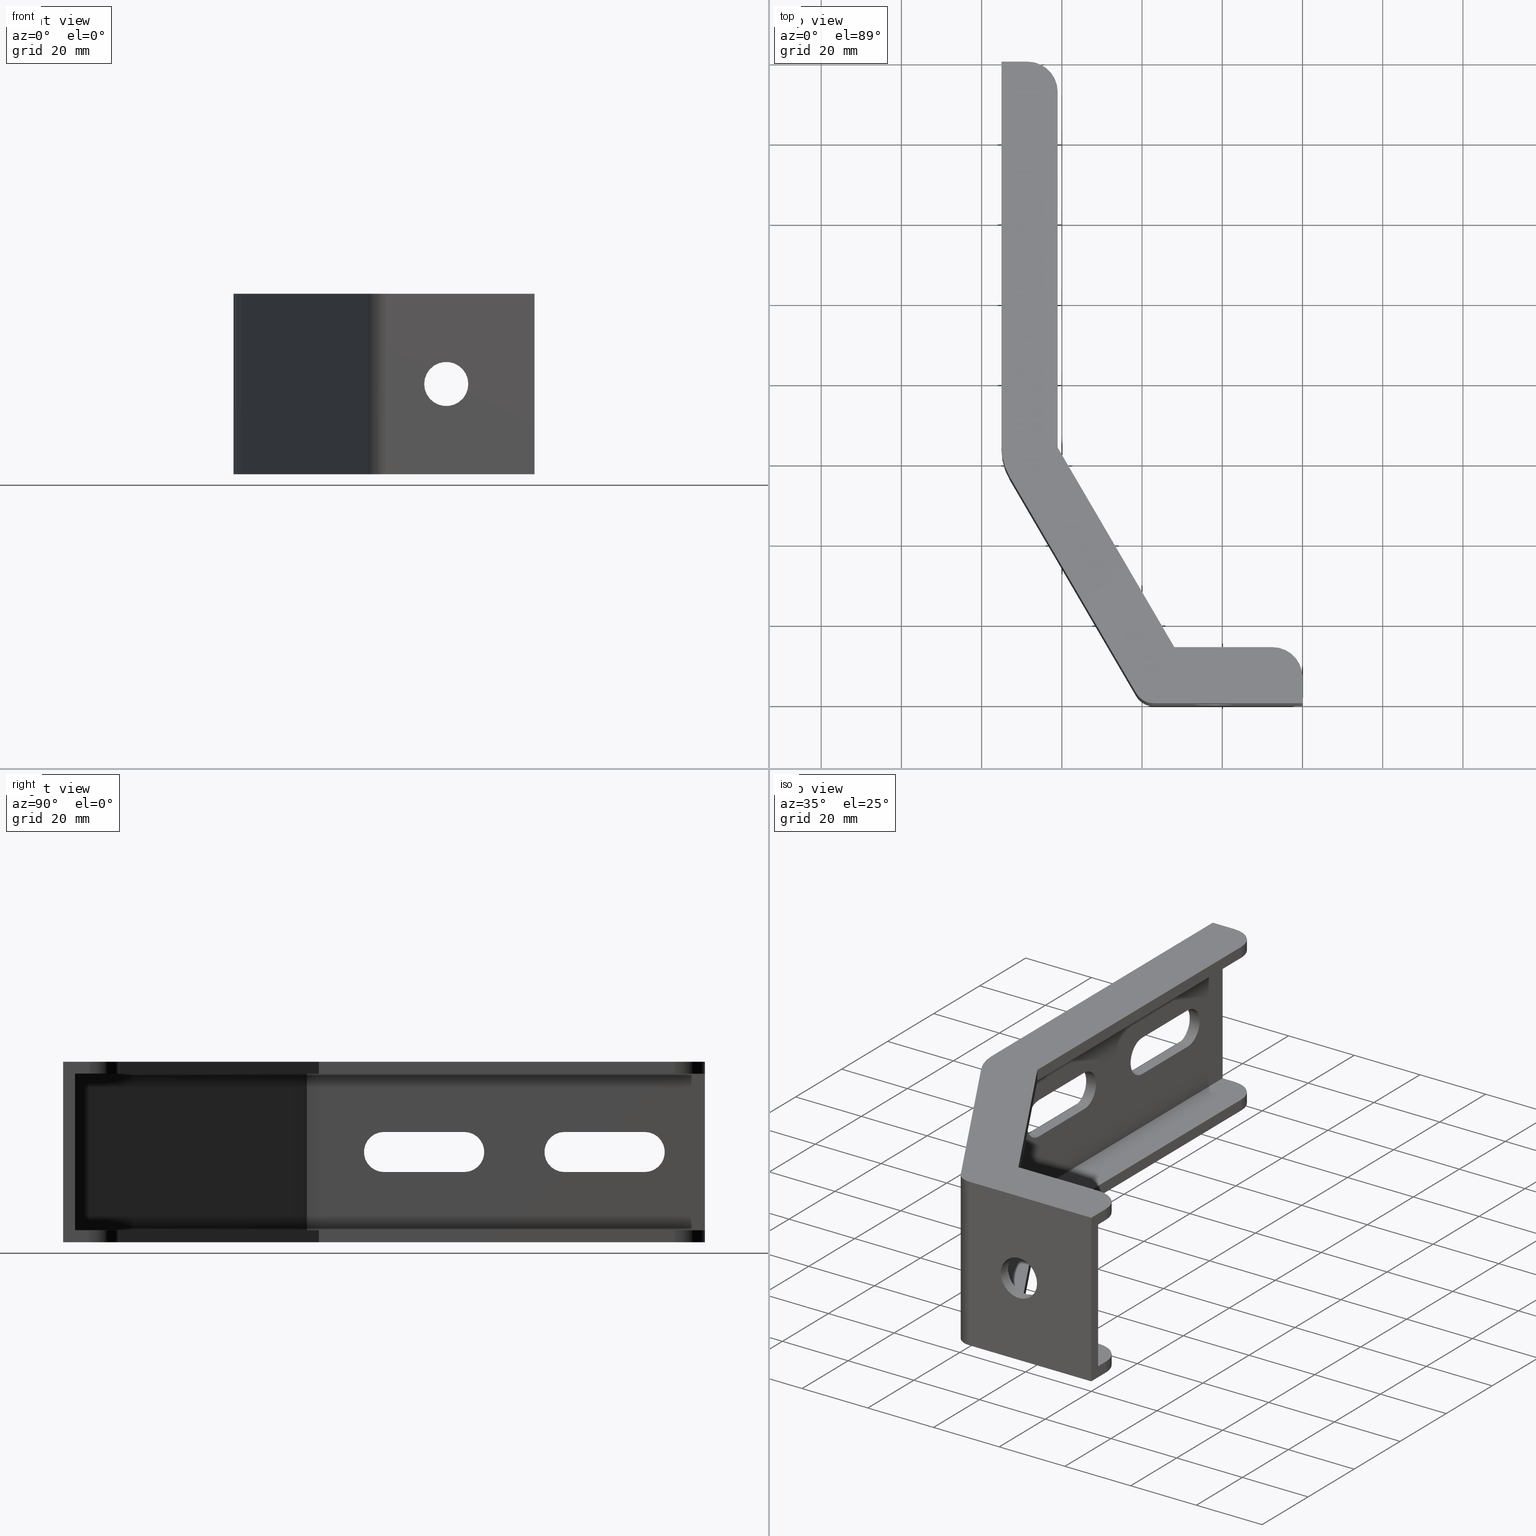
[diagram: canonical four-view strip — front | top / right | iso, engineering-drawing reading convention]
A machine part, canonical four-view strip (front | top / right | iso — engineering-drawing reading convention). The complete STEP part file that produces these views, byte-faithful:
ISO-10303-21;
HEADER;
/* Generated by software containing ST-Developer
 * from STEP Tools, Inc. (www.steptools.com) 
 */

FILE_DESCRIPTION(
/* description */ ('STAFFA DI ANCORAGGIO SERIE 45'),
/* implementation_level */ '2;1');

FILE_NAME(
/* name */ 
'Q:\\Catalogo\\2_Accessori Dierre\\Per Download Web e catalogo cartace
o\\CATALOGO PIEDI E SOSTEGNI\\PAGINA 50\\DPDFQ0000089.stp',
/* time_stamp */ '2018-11-06T08:45:23+01:00',
/* author */ ('fzagni'),
/* organization */ (''),
/* preprocessor_version */ 'ST-DEVELOPER v16.1',
/* originating_system */ 'Autodesk Inventor 2016',
/* authorisation */ '');

FILE_SCHEMA (('AUTOMOTIVE_DESIGN { 1 0 10303 214 3 1 1 }'));
ENDSEC;

DATA;
#10=MECHANICAL_DESIGN_GEOMETRIC_PRESENTATION_REPRESENTATION('',(#13),#1091);
#11=SHAPE_REPRESENTATION_RELATIONSHIP('SRR','None',#1100,#12);
#12=ADVANCED_BREP_SHAPE_REPRESENTATION('',(#14),#1090);
#13=STYLED_ITEM('',(#1109),#14);
#14=MANIFOLD_SOLID_BREP('Solido1',#661);
#15=FACE_BOUND('',#79,.T.);
#16=FACE_BOUND('',#83,.T.);
#17=FACE_BOUND('',#84,.T.);
#18=FACE_BOUND('',#97,.T.);
#19=FACE_BOUND('',#107,.T.);
#20=FACE_BOUND('',#111,.T.);
#21=FACE_BOUND('',#112,.T.);
#22=PLANE('',#666);
#23=PLANE('',#668);
#24=PLANE('',#674);
#25=PLANE('',#679);
#26=PLANE('',#684);
#27=PLANE('',#685);
#28=PLANE('',#689);
#29=PLANE('',#690);
#30=PLANE('',#693);
#31=PLANE('',#695);
#32=PLANE('',#700);
#33=PLANE('',#701);
#34=PLANE('',#704);
#35=PLANE('',#707);
#36=PLANE('',#710);
#37=PLANE('',#711);
#38=PLANE('',#712);
#39=PLANE('',#713);
#40=PLANE('',#714);
#41=PLANE('',#715);
#42=PLANE('',#716);
#43=PLANE('',#717);
#44=FACE_OUTER_BOUND('',#77,.T.);
#45=FACE_OUTER_BOUND('',#78,.T.);
#46=FACE_OUTER_BOUND('',#80,.T.);
#47=FACE_OUTER_BOUND('',#81,.T.);
#48=FACE_OUTER_BOUND('',#82,.T.);
#49=FACE_OUTER_BOUND('',#85,.T.);
#50=FACE_OUTER_BOUND('',#86,.T.);
#51=FACE_OUTER_BOUND('',#87,.T.);
#52=FACE_OUTER_BOUND('',#88,.T.);
#53=FACE_OUTER_BOUND('',#89,.T.);
#54=FACE_OUTER_BOUND('',#90,.T.);
#55=FACE_OUTER_BOUND('',#91,.T.);
#56=FACE_OUTER_BOUND('',#92,.T.);
#57=FACE_OUTER_BOUND('',#93,.T.);
#58=FACE_OUTER_BOUND('',#94,.T.);
#59=FACE_OUTER_BOUND('',#95,.T.);
#60=FACE_OUTER_BOUND('',#96,.T.);
#61=FACE_OUTER_BOUND('',#98,.T.);
#62=FACE_OUTER_BOUND('',#99,.T.);
#63=FACE_OUTER_BOUND('',#100,.T.);
#64=FACE_OUTER_BOUND('',#101,.T.);
#65=FACE_OUTER_BOUND('',#102,.T.);
#66=FACE_OUTER_BOUND('',#103,.T.);
#67=FACE_OUTER_BOUND('',#104,.T.);
#68=FACE_OUTER_BOUND('',#105,.T.);
#69=FACE_OUTER_BOUND('',#106,.T.);
#70=FACE_OUTER_BOUND('',#108,.T.);
#71=FACE_OUTER_BOUND('',#109,.T.);
#72=FACE_OUTER_BOUND('',#110,.T.);
#73=FACE_OUTER_BOUND('',#113,.T.);
#74=FACE_OUTER_BOUND('',#114,.T.);
#75=FACE_OUTER_BOUND('',#115,.T.);
#76=FACE_OUTER_BOUND('',#116,.T.);
#77=EDGE_LOOP('',(#433,#434,#435,#436));
#78=EDGE_LOOP('',(#437,#438,#439,#440));
#79=EDGE_LOOP('',(#441));
#80=EDGE_LOOP('',(#442,#443,#444,#445,#446,#447,#448,#449,#450,#451,#452,
#453));
#81=EDGE_LOOP('',(#454,#455,#456,#457));
#82=EDGE_LOOP('',(#458,#459,#460,#461));
#83=EDGE_LOOP('',(#462,#463,#464,#465));
#84=EDGE_LOOP('',(#466,#467,#468,#469));
#85=EDGE_LOOP('',(#470,#471,#472,#473,#474,#475,#476,#477,#478,#479,#480,
#481));
#86=EDGE_LOOP('',(#482,#483,#484,#485));
#87=EDGE_LOOP('',(#486,#487,#488,#489,#490,#491,#492,#493));
#88=EDGE_LOOP('',(#494,#495,#496,#497,#498,#499,#500,#501,#502,#503));
#89=EDGE_LOOP('',(#504,#505,#506,#507));
#90=EDGE_LOOP('',(#508,#509,#510,#511));
#91=EDGE_LOOP('',(#512,#513,#514,#515,#516,#517,#518,#519,#520,#521));
#92=EDGE_LOOP('',(#522,#523,#524,#525));
#93=EDGE_LOOP('',(#526,#527,#528,#529));
#94=EDGE_LOOP('',(#530,#531,#532,#533));
#95=EDGE_LOOP('',(#534,#535,#536,#537,#538,#539,#540,#541));
#96=EDGE_LOOP('',(#542));
#97=EDGE_LOOP('',(#543));
#98=EDGE_LOOP('',(#544,#545,#546,#547));
#99=EDGE_LOOP('',(#548,#549,#550,#551));
#100=EDGE_LOOP('',(#552,#553,#554,#555));
#101=EDGE_LOOP('',(#556,#557,#558,#559));
#102=EDGE_LOOP('',(#560,#561,#562,#563));
#103=EDGE_LOOP('',(#564,#565,#566,#567));
#104=EDGE_LOOP('',(#568,#569,#570,#571));
#105=EDGE_LOOP('',(#572,#573,#574,#575));
#106=EDGE_LOOP('',(#576,#577,#578,#579));
#107=EDGE_LOOP('',(#580));
#108=EDGE_LOOP('',(#581,#582,#583,#584));
#109=EDGE_LOOP('',(#585,#586,#587,#588));
#110=EDGE_LOOP('',(#589,#590,#591,#592));
#111=EDGE_LOOP('',(#593,#594,#595,#596));
#112=EDGE_LOOP('',(#597,#598,#599,#600));
#113=EDGE_LOOP('',(#601,#602,#603,#604));
#114=EDGE_LOOP('',(#605,#606,#607,#608));
#115=EDGE_LOOP('',(#609,#610,#611,#612));
#116=EDGE_LOOP('',(#613,#614,#615,#616));
#117=LINE('',#906,#187);
#118=LINE('',#909,#188);
#119=LINE('',#912,#189);
#120=LINE('',#914,#190);
#121=LINE('',#915,#191);
#122=LINE('',#920,#192);
#123=LINE('',#924,#193);
#124=LINE('',#926,#194);
#125=LINE('',#930,#195);
#126=LINE('',#932,#196);
#127=LINE('',#934,#197);
#128=LINE('',#937,#198);
#129=LINE('',#942,#199);
#130=LINE('',#943,#200);
#131=LINE('',#946,#201);
#132=LINE('',#947,#202);
#133=LINE('',#950,#203);
#134=LINE('',#954,#204);
#135=LINE('',#960,#205);
#136=LINE('',#963,#206);
#137=LINE('',#966,#207);
#138=LINE('',#970,#208);
#139=LINE('',#972,#209);
#140=LINE('',#974,#210);
#141=LINE('',#977,#211);
#142=LINE('',#978,#212);
#143=LINE('',#981,#213);
#144=LINE('',#984,#214);
#145=LINE('',#987,#215);
#146=LINE('',#989,#216);
#147=LINE('',#991,#217);
#148=LINE('',#992,#218);
#149=LINE('',#995,#219);
#150=LINE('',#997,#220);
#151=LINE('',#999,#221);
#152=LINE('',#1003,#222);
#153=LINE('',#1005,#223);
#154=LINE('',#1007,#224);
#155=LINE('',#1008,#225);
#156=LINE('',#1012,#226);
#157=LINE('',#1015,#227);
#158=LINE('',#1016,#228);
#159=LINE('',#1019,#229);
#160=LINE('',#1021,#230);
#161=LINE('',#1023,#231);
#162=LINE('',#1025,#232);
#163=LINE('',#1029,#233);
#164=LINE('',#1030,#234);
#165=LINE('',#1032,#235);
#166=LINE('',#1033,#236);
#167=LINE('',#1035,#237);
#168=LINE('',#1037,#238);
#169=LINE('',#1038,#239);
#170=LINE('',#1040,#240);
#171=LINE('',#1046,#241);
#172=LINE('',#1049,#242);
#173=LINE('',#1052,#243);
#174=LINE('',#1053,#244);
#175=LINE('',#1056,#245);
#176=LINE('',#1057,#246);
#177=LINE('',#1062,#247);
#178=LINE('',#1064,#248);
#179=LINE('',#1065,#249);
#180=LINE('',#1069,#250);
#181=LINE('',#1072,#251);
#182=LINE('',#1073,#252);
#183=LINE('',#1077,#253);
#184=LINE('',#1079,#254);
#185=LINE('',#1081,#255);
#186=LINE('',#1084,#256);
#187=VECTOR('',#724,45.);
#188=VECTOR('',#727,45.);
#189=VECTOR('',#730,37.1306756454978);
#190=VECTOR('',#731,45.);
#191=VECTOR('',#732,37.1306756454978);
#192=VECTOR('',#737,62.5293187560488);
#193=VECTOR('',#740,95.9671881654047);
#194=VECTOR('',#741,6.49999999999999);
#195=VECTOR('',#744,88.737945291368);
#196=VECTOR('',#745,57.6352920439079);
#197=VECTOR('',#746,24.4658918073937);
#198=VECTOR('',#749,6.5);
#199=VECTOR('',#754,45.);
#200=VECTOR('',#755,45.);
#201=VECTOR('',#758,95.9671881654047);
#202=VECTOR('',#759,45.);
#203=VECTOR('',#760,20.);
#204=VECTOR('',#763,20.);
#205=VECTOR('',#768,20.);
#206=VECTOR('',#771,20.);
#207=VECTOR('',#774,6.5);
#208=VECTOR('',#777,24.4658918073937);
#209=VECTOR('',#778,57.6352920439079);
#210=VECTOR('',#779,88.737945291368);
#211=VECTOR('',#782,6.49999999999999);
#212=VECTOR('',#783,62.5293187560488);
#213=VECTOR('',#786,3.);
#214=VECTOR('',#789,3.);
#215=VECTOR('',#792,3.5);
#216=VECTOR('',#793,39.);
#217=VECTOR('',#794,3.5);
#218=VECTOR('',#795,3.);
#219=VECTOR('',#798,24.4658918073937);
#220=VECTOR('',#799,57.6352920439079);
#221=VECTOR('',#800,88.737945291368);
#222=VECTOR('',#803,3.50000000000001);
#223=VECTOR('',#804,99.2162736769639);
#224=VECTOR('',#805,66.9261340094089);
#225=VECTOR('',#806,38.2784053872987);
#226=VECTOR('',#811,3.);
#227=VECTOR('',#814,24.4658918073937);
#228=VECTOR('',#815,3.);
#229=VECTOR('',#818,38.2784053872987);
#230=VECTOR('',#819,66.9261340094089);
#231=VECTOR('',#820,99.2162736769639);
#232=VECTOR('',#821,3.5);
#233=VECTOR('',#824,88.737945291368);
#234=VECTOR('',#825,57.6352920439079);
#235=VECTOR('',#828,3.);
#236=VECTOR('',#829,3.);
#237=VECTOR('',#832,3.);
#238=VECTOR('',#835,3.);
#239=VECTOR('',#836,3.);
#240=VECTOR('',#839,39.);
#241=VECTOR('',#846,3.);
#242=VECTOR('',#849,3.);
#243=VECTOR('',#852,20.);
#244=VECTOR('',#853,3.);
#245=VECTOR('',#856,3.);
#246=VECTOR('',#857,20.);
#247=VECTOR('',#864,3.);
#248=VECTOR('',#865,20.);
#249=VECTOR('',#866,3.);
#250=VECTOR('',#871,3.);
#251=VECTOR('',#874,20.);
#252=VECTOR('',#875,3.);
#253=VECTOR('',#882,39.);
#254=VECTOR('',#885,3.);
#255=VECTOR('',#888,39.);
#256=VECTOR('',#893,3.);
#257=CIRCLE('',#664,5.);
#258=CIRCLE('',#665,5.);
#259=CIRCLE('',#667,5.5);
#260=CIRCLE('',#669,15.);
#261=CIRCLE('',#670,7.5);
#262=CIRCLE('',#671,7.5);
#263=CIRCLE('',#673,15.);
#264=CIRCLE('',#675,5.);
#265=CIRCLE('',#676,5.);
#266=CIRCLE('',#677,5.);
#267=CIRCLE('',#678,5.);
#268=CIRCLE('',#680,7.5);
#269=CIRCLE('',#681,7.5);
#270=CIRCLE('',#683,7.5);
#271=CIRCLE('',#686,7.5);
#272=CIRCLE('',#688,7.5);
#273=CIRCLE('',#691,7.5);
#274=CIRCLE('',#697,5.5);
#275=CIRCLE('',#699,5.);
#276=CIRCLE('',#703,5.);
#277=CIRCLE('',#706,5.);
#278=CIRCLE('',#709,5.);
#279=VERTEX_POINT('',#902);
#280=VERTEX_POINT('',#903);
#281=VERTEX_POINT('',#905);
#282=VERTEX_POINT('',#907);
#283=VERTEX_POINT('',#911);
#284=VERTEX_POINT('',#913);
#285=VERTEX_POINT('',#916);
#286=VERTEX_POINT('',#919);
#287=VERTEX_POINT('',#921);
#288=VERTEX_POINT('',#923);
#289=VERTEX_POINT('',#925);
#290=VERTEX_POINT('',#927);
#291=VERTEX_POINT('',#929);
#292=VERTEX_POINT('',#931);
#293=VERTEX_POINT('',#933);
#294=VERTEX_POINT('',#935);
#295=VERTEX_POINT('',#939);
#296=VERTEX_POINT('',#940);
#297=VERTEX_POINT('',#945);
#298=VERTEX_POINT('',#948);
#299=VERTEX_POINT('',#949);
#300=VERTEX_POINT('',#951);
#301=VERTEX_POINT('',#953);
#302=VERTEX_POINT('',#956);
#303=VERTEX_POINT('',#957);
#304=VERTEX_POINT('',#959);
#305=VERTEX_POINT('',#961);
#306=VERTEX_POINT('',#965);
#307=VERTEX_POINT('',#967);
#308=VERTEX_POINT('',#969);
#309=VERTEX_POINT('',#971);
#310=VERTEX_POINT('',#973);
#311=VERTEX_POINT('',#975);
#312=VERTEX_POINT('',#980);
#313=VERTEX_POINT('',#982);
#314=VERTEX_POINT('',#986);
#315=VERTEX_POINT('',#988);
#316=VERTEX_POINT('',#990);
#317=VERTEX_POINT('',#994);
#318=VERTEX_POINT('',#996);
#319=VERTEX_POINT('',#998);
#320=VERTEX_POINT('',#1000);
#321=VERTEX_POINT('',#1002);
#322=VERTEX_POINT('',#1004);
#323=VERTEX_POINT('',#1006);
#324=VERTEX_POINT('',#1010);
#325=VERTEX_POINT('',#1014);
#326=VERTEX_POINT('',#1018);
#327=VERTEX_POINT('',#1020);
#328=VERTEX_POINT('',#1022);
#329=VERTEX_POINT('',#1024);
#330=VERTEX_POINT('',#1026);
#331=VERTEX_POINT('',#1028);
#332=VERTEX_POINT('',#1042);
#333=VERTEX_POINT('',#1045);
#334=VERTEX_POINT('',#1047);
#335=VERTEX_POINT('',#1051);
#336=VERTEX_POINT('',#1055);
#337=VERTEX_POINT('',#1061);
#338=VERTEX_POINT('',#1063);
#339=VERTEX_POINT('',#1067);
#340=VERTEX_POINT('',#1071);
#341=EDGE_CURVE('',#279,#280,#257,.T.);
#342=EDGE_CURVE('',#280,#281,#117,.T.);
#343=EDGE_CURVE('',#281,#282,#258,.T.);
#344=EDGE_CURVE('',#282,#279,#118,.T.);
#345=EDGE_CURVE('',#283,#282,#119,.T.);
#346=EDGE_CURVE('',#283,#284,#120,.T.);
#347=EDGE_CURVE('',#279,#284,#121,.T.);
#348=EDGE_CURVE('',#285,#285,#259,.T.);
#349=EDGE_CURVE('',#281,#286,#122,.T.);
#350=EDGE_CURVE('',#287,#286,#260,.T.);
#351=EDGE_CURVE('',#287,#288,#123,.T.);
#352=EDGE_CURVE('',#288,#289,#124,.T.);
#353=EDGE_CURVE('',#290,#289,#261,.T.);
#354=EDGE_CURVE('',#290,#291,#125,.T.);
#355=EDGE_CURVE('',#291,#292,#126,.T.);
#356=EDGE_CURVE('',#292,#293,#127,.T.);
#357=EDGE_CURVE('',#294,#293,#262,.T.);
#358=EDGE_CURVE('',#294,#283,#128,.T.);
#359=EDGE_CURVE('',#295,#296,#263,.T.);
#360=EDGE_CURVE('',#296,#287,#129,.T.);
#361=EDGE_CURVE('',#286,#295,#130,.T.);
#362=EDGE_CURVE('',#297,#296,#131,.T.);
#363=EDGE_CURVE('',#297,#288,#132,.T.);
#364=EDGE_CURVE('',#298,#299,#133,.T.);
#365=EDGE_CURVE('',#299,#300,#264,.T.);
#366=EDGE_CURVE('',#300,#301,#134,.T.);
#367=EDGE_CURVE('',#301,#298,#265,.T.);
#368=EDGE_CURVE('',#302,#303,#266,.T.);
#369=EDGE_CURVE('',#303,#304,#135,.T.);
#370=EDGE_CURVE('',#304,#305,#267,.T.);
#371=EDGE_CURVE('',#305,#302,#136,.T.);
#372=EDGE_CURVE('',#284,#306,#137,.T.);
#373=EDGE_CURVE('',#307,#306,#268,.T.);
#374=EDGE_CURVE('',#307,#308,#138,.T.);
#375=EDGE_CURVE('',#308,#309,#139,.T.);
#376=EDGE_CURVE('',#309,#310,#140,.T.);
#377=EDGE_CURVE('',#311,#310,#269,.T.);
#378=EDGE_CURVE('',#311,#297,#141,.T.);
#379=EDGE_CURVE('',#295,#280,#142,.T.);
#380=EDGE_CURVE('',#293,#312,#143,.T.);
#381=EDGE_CURVE('',#312,#313,#270,.T.);
#382=EDGE_CURVE('',#313,#294,#144,.T.);
#383=EDGE_CURVE('',#313,#314,#145,.T.);
#384=EDGE_CURVE('',#314,#315,#146,.T.);
#385=EDGE_CURVE('',#315,#316,#147,.T.);
#386=EDGE_CURVE('',#306,#316,#148,.T.);
#387=EDGE_CURVE('',#317,#312,#149,.T.);
#388=EDGE_CURVE('',#318,#317,#150,.T.);
#389=EDGE_CURVE('',#319,#318,#151,.T.);
#390=EDGE_CURVE('',#320,#319,#271,.T.);
#391=EDGE_CURVE('',#321,#320,#152,.T.);
#392=EDGE_CURVE('',#321,#322,#153,.T.);
#393=EDGE_CURVE('',#323,#322,#154,.F.);
#394=EDGE_CURVE('',#314,#323,#155,.F.);
#395=EDGE_CURVE('',#316,#324,#272,.T.);
#396=EDGE_CURVE('',#324,#307,#156,.T.);
#397=EDGE_CURVE('',#324,#325,#157,.T.);
#398=EDGE_CURVE('',#325,#308,#158,.T.);
#399=EDGE_CURVE('',#315,#326,#159,.T.);
#400=EDGE_CURVE('',#327,#326,#160,.F.);
#401=EDGE_CURVE('',#328,#327,#161,.F.);
#402=EDGE_CURVE('',#329,#328,#162,.T.);
#403=EDGE_CURVE('',#330,#329,#273,.T.);
#404=EDGE_CURVE('',#331,#330,#163,.T.);
#405=EDGE_CURVE('',#325,#331,#164,.T.);
#406=EDGE_CURVE('',#289,#320,#165,.T.);
#407=EDGE_CURVE('',#319,#290,#166,.T.);
#408=EDGE_CURVE('',#291,#318,#167,.T.);
#409=EDGE_CURVE('',#310,#330,#168,.T.);
#410=EDGE_CURVE('',#329,#311,#169,.T.);
#411=EDGE_CURVE('',#328,#321,#170,.T.);
#412=EDGE_CURVE('',#332,#332,#274,.T.);
#413=EDGE_CURVE('',#333,#304,#171,.T.);
#414=EDGE_CURVE('',#334,#333,#275,.T.);
#415=EDGE_CURVE('',#334,#305,#172,.T.);
#416=EDGE_CURVE('',#335,#334,#173,.T.);
#417=EDGE_CURVE('',#335,#302,#174,.T.);
#418=EDGE_CURVE('',#336,#303,#175,.T.);
#419=EDGE_CURVE('',#333,#336,#176,.T.);
#420=EDGE_CURVE('',#336,#335,#276,.T.);
#421=EDGE_CURVE('',#337,#300,#177,.T.);
#422=EDGE_CURVE('',#338,#337,#178,.T.);
#423=EDGE_CURVE('',#338,#301,#179,.T.);
#424=EDGE_CURVE('',#339,#338,#277,.T.);
#425=EDGE_CURVE('',#339,#298,#180,.T.);
#426=EDGE_CURVE('',#340,#339,#181,.T.);
#427=EDGE_CURVE('',#340,#299,#182,.T.);
#428=EDGE_CURVE('',#337,#340,#278,.T.);
#429=EDGE_CURVE('',#323,#326,#183,.F.);
#430=EDGE_CURVE('',#292,#317,#184,.T.);
#431=EDGE_CURVE('',#322,#327,#185,.F.);
#432=EDGE_CURVE('',#331,#309,#186,.T.);
#433=ORIENTED_EDGE('',*,*,#341,.T.);
#434=ORIENTED_EDGE('',*,*,#342,.T.);
#435=ORIENTED_EDGE('',*,*,#343,.T.);
#436=ORIENTED_EDGE('',*,*,#344,.T.);
#437=ORIENTED_EDGE('',*,*,#344,.F.);
#438=ORIENTED_EDGE('',*,*,#345,.F.);
#439=ORIENTED_EDGE('',*,*,#346,.T.);
#440=ORIENTED_EDGE('',*,*,#347,.F.);
#441=ORIENTED_EDGE('',*,*,#348,.T.);
#442=ORIENTED_EDGE('',*,*,#343,.F.);
#443=ORIENTED_EDGE('',*,*,#349,.T.);
#444=ORIENTED_EDGE('',*,*,#350,.F.);
#445=ORIENTED_EDGE('',*,*,#351,.T.);
#446=ORIENTED_EDGE('',*,*,#352,.T.);
#447=ORIENTED_EDGE('',*,*,#353,.F.);
#448=ORIENTED_EDGE('',*,*,#354,.T.);
#449=ORIENTED_EDGE('',*,*,#355,.T.);
#450=ORIENTED_EDGE('',*,*,#356,.T.);
#451=ORIENTED_EDGE('',*,*,#357,.F.);
#452=ORIENTED_EDGE('',*,*,#358,.T.);
#453=ORIENTED_EDGE('',*,*,#345,.T.);
#454=ORIENTED_EDGE('',*,*,#359,.T.);
#455=ORIENTED_EDGE('',*,*,#360,.T.);
#456=ORIENTED_EDGE('',*,*,#350,.T.);
#457=ORIENTED_EDGE('',*,*,#361,.T.);
#458=ORIENTED_EDGE('',*,*,#360,.F.);
#459=ORIENTED_EDGE('',*,*,#362,.F.);
#460=ORIENTED_EDGE('',*,*,#363,.T.);
#461=ORIENTED_EDGE('',*,*,#351,.F.);
#462=ORIENTED_EDGE('',*,*,#364,.T.);
#463=ORIENTED_EDGE('',*,*,#365,.T.);
#464=ORIENTED_EDGE('',*,*,#366,.T.);
#465=ORIENTED_EDGE('',*,*,#367,.T.);
#466=ORIENTED_EDGE('',*,*,#368,.T.);
#467=ORIENTED_EDGE('',*,*,#369,.T.);
#468=ORIENTED_EDGE('',*,*,#370,.T.);
#469=ORIENTED_EDGE('',*,*,#371,.T.);
#470=ORIENTED_EDGE('',*,*,#341,.F.);
#471=ORIENTED_EDGE('',*,*,#347,.T.);
#472=ORIENTED_EDGE('',*,*,#372,.T.);
#473=ORIENTED_EDGE('',*,*,#373,.F.);
#474=ORIENTED_EDGE('',*,*,#374,.T.);
#475=ORIENTED_EDGE('',*,*,#375,.T.);
#476=ORIENTED_EDGE('',*,*,#376,.T.);
#477=ORIENTED_EDGE('',*,*,#377,.F.);
#478=ORIENTED_EDGE('',*,*,#378,.T.);
#479=ORIENTED_EDGE('',*,*,#362,.T.);
#480=ORIENTED_EDGE('',*,*,#359,.F.);
#481=ORIENTED_EDGE('',*,*,#379,.T.);
#482=ORIENTED_EDGE('',*,*,#357,.T.);
#483=ORIENTED_EDGE('',*,*,#380,.T.);
#484=ORIENTED_EDGE('',*,*,#381,.T.);
#485=ORIENTED_EDGE('',*,*,#382,.T.);
#486=ORIENTED_EDGE('',*,*,#382,.F.);
#487=ORIENTED_EDGE('',*,*,#383,.T.);
#488=ORIENTED_EDGE('',*,*,#384,.T.);
#489=ORIENTED_EDGE('',*,*,#385,.T.);
#490=ORIENTED_EDGE('',*,*,#386,.F.);
#491=ORIENTED_EDGE('',*,*,#372,.F.);
#492=ORIENTED_EDGE('',*,*,#346,.F.);
#493=ORIENTED_EDGE('',*,*,#358,.F.);
#494=ORIENTED_EDGE('',*,*,#381,.F.);
#495=ORIENTED_EDGE('',*,*,#387,.F.);
#496=ORIENTED_EDGE('',*,*,#388,.F.);
#497=ORIENTED_EDGE('',*,*,#389,.F.);
#498=ORIENTED_EDGE('',*,*,#390,.F.);
#499=ORIENTED_EDGE('',*,*,#391,.F.);
#500=ORIENTED_EDGE('',*,*,#392,.T.);
#501=ORIENTED_EDGE('',*,*,#393,.F.);
#502=ORIENTED_EDGE('',*,*,#394,.F.);
#503=ORIENTED_EDGE('',*,*,#383,.F.);
#504=ORIENTED_EDGE('',*,*,#373,.T.);
#505=ORIENTED_EDGE('',*,*,#386,.T.);
#506=ORIENTED_EDGE('',*,*,#395,.T.);
#507=ORIENTED_EDGE('',*,*,#396,.T.);
#508=ORIENTED_EDGE('',*,*,#396,.F.);
#509=ORIENTED_EDGE('',*,*,#397,.T.);
#510=ORIENTED_EDGE('',*,*,#398,.T.);
#511=ORIENTED_EDGE('',*,*,#374,.F.);
#512=ORIENTED_EDGE('',*,*,#395,.F.);
#513=ORIENTED_EDGE('',*,*,#385,.F.);
#514=ORIENTED_EDGE('',*,*,#399,.T.);
#515=ORIENTED_EDGE('',*,*,#400,.F.);
#516=ORIENTED_EDGE('',*,*,#401,.F.);
#517=ORIENTED_EDGE('',*,*,#402,.F.);
#518=ORIENTED_EDGE('',*,*,#403,.F.);
#519=ORIENTED_EDGE('',*,*,#404,.F.);
#520=ORIENTED_EDGE('',*,*,#405,.F.);
#521=ORIENTED_EDGE('',*,*,#397,.F.);
#522=ORIENTED_EDGE('',*,*,#353,.T.);
#523=ORIENTED_EDGE('',*,*,#406,.T.);
#524=ORIENTED_EDGE('',*,*,#390,.T.);
#525=ORIENTED_EDGE('',*,*,#407,.T.);
#526=ORIENTED_EDGE('',*,*,#407,.F.);
#527=ORIENTED_EDGE('',*,*,#389,.T.);
#528=ORIENTED_EDGE('',*,*,#408,.F.);
#529=ORIENTED_EDGE('',*,*,#354,.F.);
#530=ORIENTED_EDGE('',*,*,#377,.T.);
#531=ORIENTED_EDGE('',*,*,#409,.T.);
#532=ORIENTED_EDGE('',*,*,#403,.T.);
#533=ORIENTED_EDGE('',*,*,#410,.T.);
#534=ORIENTED_EDGE('',*,*,#406,.F.);
#535=ORIENTED_EDGE('',*,*,#352,.F.);
#536=ORIENTED_EDGE('',*,*,#363,.F.);
#537=ORIENTED_EDGE('',*,*,#378,.F.);
#538=ORIENTED_EDGE('',*,*,#410,.F.);
#539=ORIENTED_EDGE('',*,*,#402,.T.);
#540=ORIENTED_EDGE('',*,*,#411,.T.);
#541=ORIENTED_EDGE('',*,*,#391,.T.);
#542=ORIENTED_EDGE('',*,*,#348,.F.);
#543=ORIENTED_EDGE('',*,*,#412,.F.);
#544=ORIENTED_EDGE('',*,*,#370,.F.);
#545=ORIENTED_EDGE('',*,*,#413,.F.);
#546=ORIENTED_EDGE('',*,*,#414,.F.);
#547=ORIENTED_EDGE('',*,*,#415,.T.);
#548=ORIENTED_EDGE('',*,*,#371,.F.);
#549=ORIENTED_EDGE('',*,*,#415,.F.);
#550=ORIENTED_EDGE('',*,*,#416,.F.);
#551=ORIENTED_EDGE('',*,*,#417,.T.);
#552=ORIENTED_EDGE('',*,*,#369,.F.);
#553=ORIENTED_EDGE('',*,*,#418,.F.);
#554=ORIENTED_EDGE('',*,*,#419,.F.);
#555=ORIENTED_EDGE('',*,*,#413,.T.);
#556=ORIENTED_EDGE('',*,*,#368,.F.);
#557=ORIENTED_EDGE('',*,*,#417,.F.);
#558=ORIENTED_EDGE('',*,*,#420,.F.);
#559=ORIENTED_EDGE('',*,*,#418,.T.);
#560=ORIENTED_EDGE('',*,*,#366,.F.);
#561=ORIENTED_EDGE('',*,*,#421,.F.);
#562=ORIENTED_EDGE('',*,*,#422,.F.);
#563=ORIENTED_EDGE('',*,*,#423,.T.);
#564=ORIENTED_EDGE('',*,*,#367,.F.);
#565=ORIENTED_EDGE('',*,*,#423,.F.);
#566=ORIENTED_EDGE('',*,*,#424,.F.);
#567=ORIENTED_EDGE('',*,*,#425,.T.);
#568=ORIENTED_EDGE('',*,*,#364,.F.);
#569=ORIENTED_EDGE('',*,*,#425,.F.);
#570=ORIENTED_EDGE('',*,*,#426,.F.);
#571=ORIENTED_EDGE('',*,*,#427,.T.);
#572=ORIENTED_EDGE('',*,*,#365,.F.);
#573=ORIENTED_EDGE('',*,*,#427,.F.);
#574=ORIENTED_EDGE('',*,*,#428,.F.);
#575=ORIENTED_EDGE('',*,*,#421,.T.);
#576=ORIENTED_EDGE('',*,*,#394,.T.);
#577=ORIENTED_EDGE('',*,*,#429,.T.);
#578=ORIENTED_EDGE('',*,*,#399,.F.);
#579=ORIENTED_EDGE('',*,*,#384,.F.);
#580=ORIENTED_EDGE('',*,*,#412,.T.);
#581=ORIENTED_EDGE('',*,*,#380,.F.);
#582=ORIENTED_EDGE('',*,*,#356,.F.);
#583=ORIENTED_EDGE('',*,*,#430,.T.);
#584=ORIENTED_EDGE('',*,*,#387,.T.);
#585=ORIENTED_EDGE('',*,*,#429,.F.);
#586=ORIENTED_EDGE('',*,*,#393,.T.);
#587=ORIENTED_EDGE('',*,*,#431,.T.);
#588=ORIENTED_EDGE('',*,*,#400,.T.);
#589=ORIENTED_EDGE('',*,*,#401,.T.);
#590=ORIENTED_EDGE('',*,*,#431,.F.);
#591=ORIENTED_EDGE('',*,*,#392,.F.);
#592=ORIENTED_EDGE('',*,*,#411,.F.);
#593=ORIENTED_EDGE('',*,*,#419,.T.);
#594=ORIENTED_EDGE('',*,*,#420,.T.);
#595=ORIENTED_EDGE('',*,*,#416,.T.);
#596=ORIENTED_EDGE('',*,*,#414,.T.);
#597=ORIENTED_EDGE('',*,*,#426,.T.);
#598=ORIENTED_EDGE('',*,*,#424,.T.);
#599=ORIENTED_EDGE('',*,*,#422,.T.);
#600=ORIENTED_EDGE('',*,*,#428,.T.);
#601=ORIENTED_EDGE('',*,*,#409,.F.);
#602=ORIENTED_EDGE('',*,*,#376,.F.);
#603=ORIENTED_EDGE('',*,*,#432,.F.);
#604=ORIENTED_EDGE('',*,*,#404,.T.);
#605=ORIENTED_EDGE('',*,*,#388,.T.);
#606=ORIENTED_EDGE('',*,*,#430,.F.);
#607=ORIENTED_EDGE('',*,*,#355,.F.);
#608=ORIENTED_EDGE('',*,*,#408,.T.);
#609=ORIENTED_EDGE('',*,*,#405,.T.);
#610=ORIENTED_EDGE('',*,*,#432,.T.);
#611=ORIENTED_EDGE('',*,*,#375,.F.);
#612=ORIENTED_EDGE('',*,*,#398,.F.);
#613=ORIENTED_EDGE('',*,*,#342,.F.);
#614=ORIENTED_EDGE('',*,*,#379,.F.);
#615=ORIENTED_EDGE('',*,*,#361,.F.);
#616=ORIENTED_EDGE('',*,*,#349,.F.);
#617=CYLINDRICAL_SURFACE('',#663,5.);
#618=CYLINDRICAL_SURFACE('',#672,15.);
#619=CYLINDRICAL_SURFACE('',#682,7.5);
#620=CYLINDRICAL_SURFACE('',#687,7.5);
#621=CYLINDRICAL_SURFACE('',#692,7.5);
#622=CYLINDRICAL_SURFACE('',#694,7.5);
#623=CYLINDRICAL_SURFACE('',#696,5.5);
#624=CYLINDRICAL_SURFACE('',#698,5.);
#625=CYLINDRICAL_SURFACE('',#702,5.);
#626=CYLINDRICAL_SURFACE('',#705,5.);
#627=CYLINDRICAL_SURFACE('',#708,5.);
#628=ADVANCED_FACE('',(#44),#617,.T.);
#629=ADVANCED_FACE('',(#45,#15),#22,.T.);
#630=ADVANCED_FACE('',(#46),#23,.F.);
#631=ADVANCED_FACE('',(#47),#618,.T.);
#632=ADVANCED_FACE('',(#48,#16,#17),#24,.T.);
#633=ADVANCED_FACE('',(#49),#25,.T.);
#634=ADVANCED_FACE('',(#50),#619,.T.);
#635=ADVANCED_FACE('',(#51),#26,.T.);
#636=ADVANCED_FACE('',(#52),#27,.T.);
#637=ADVANCED_FACE('',(#53),#620,.T.);
#638=ADVANCED_FACE('',(#54),#28,.T.);
#639=ADVANCED_FACE('',(#55),#29,.F.);
#640=ADVANCED_FACE('',(#56),#621,.T.);
#641=ADVANCED_FACE('',(#57),#30,.T.);
#642=ADVANCED_FACE('',(#58),#622,.T.);
#643=ADVANCED_FACE('',(#59),#31,.T.);
#644=ADVANCED_FACE('',(#60,#18),#623,.F.);
#645=ADVANCED_FACE('',(#61),#624,.F.);
#646=ADVANCED_FACE('',(#62),#32,.F.);
#647=ADVANCED_FACE('',(#63),#33,.F.);
#648=ADVANCED_FACE('',(#64),#625,.F.);
#649=ADVANCED_FACE('',(#65),#34,.F.);
#650=ADVANCED_FACE('',(#66),#626,.F.);
#651=ADVANCED_FACE('',(#67),#35,.F.);
#652=ADVANCED_FACE('',(#68),#627,.F.);
#653=ADVANCED_FACE('',(#69,#19),#36,.F.);
#654=ADVANCED_FACE('',(#70),#37,.T.);
#655=ADVANCED_FACE('',(#71),#38,.F.);
#656=ADVANCED_FACE('',(#72,#20,#21),#39,.F.);
#657=ADVANCED_FACE('',(#73),#40,.T.);
#658=ADVANCED_FACE('',(#74),#41,.T.);
#659=ADVANCED_FACE('',(#75),#42,.T.);
#660=ADVANCED_FACE('',(#76),#43,.T.);
#661=CLOSED_SHELL('',(#628,#629,#630,#631,#632,#633,#634,#635,#636,#637,
#638,#639,#640,#641,#642,#643,#644,#645,#646,#647,#648,#649,#650,#651,#652,
#653,#654,#655,#656,#657,#658,#659,#660));
#662=AXIS2_PLACEMENT_3D('placement',#900,#718,#719);
#663=AXIS2_PLACEMENT_3D('',#901,#720,#721);
#664=AXIS2_PLACEMENT_3D('',#904,#722,#723);
#665=AXIS2_PLACEMENT_3D('',#908,#725,#726);
#666=AXIS2_PLACEMENT_3D('',#910,#728,#729);
#667=AXIS2_PLACEMENT_3D('',#917,#733,#734);
#668=AXIS2_PLACEMENT_3D('',#918,#735,#736);
#669=AXIS2_PLACEMENT_3D('',#922,#738,#739);
#670=AXIS2_PLACEMENT_3D('',#928,#742,#743);
#671=AXIS2_PLACEMENT_3D('',#936,#747,#748);
#672=AXIS2_PLACEMENT_3D('',#938,#750,#751);
#673=AXIS2_PLACEMENT_3D('',#941,#752,#753);
#674=AXIS2_PLACEMENT_3D('',#944,#756,#757);
#675=AXIS2_PLACEMENT_3D('',#952,#761,#762);
#676=AXIS2_PLACEMENT_3D('',#955,#764,#765);
#677=AXIS2_PLACEMENT_3D('',#958,#766,#767);
#678=AXIS2_PLACEMENT_3D('',#962,#769,#770);
#679=AXIS2_PLACEMENT_3D('',#964,#772,#773);
#680=AXIS2_PLACEMENT_3D('',#968,#775,#776);
#681=AXIS2_PLACEMENT_3D('',#976,#780,#781);
#682=AXIS2_PLACEMENT_3D('',#979,#784,#785);
#683=AXIS2_PLACEMENT_3D('',#983,#787,#788);
#684=AXIS2_PLACEMENT_3D('',#985,#790,#791);
#685=AXIS2_PLACEMENT_3D('',#993,#796,#797);
#686=AXIS2_PLACEMENT_3D('',#1001,#801,#802);
#687=AXIS2_PLACEMENT_3D('',#1009,#807,#808);
#688=AXIS2_PLACEMENT_3D('',#1011,#809,#810);
#689=AXIS2_PLACEMENT_3D('',#1013,#812,#813);
#690=AXIS2_PLACEMENT_3D('',#1017,#816,#817);
#691=AXIS2_PLACEMENT_3D('',#1027,#822,#823);
#692=AXIS2_PLACEMENT_3D('',#1031,#826,#827);
#693=AXIS2_PLACEMENT_3D('',#1034,#830,#831);
#694=AXIS2_PLACEMENT_3D('',#1036,#833,#834);
#695=AXIS2_PLACEMENT_3D('',#1039,#837,#838);
#696=AXIS2_PLACEMENT_3D('',#1041,#840,#841);
#697=AXIS2_PLACEMENT_3D('',#1043,#842,#843);
#698=AXIS2_PLACEMENT_3D('',#1044,#844,#845);
#699=AXIS2_PLACEMENT_3D('',#1048,#847,#848);
#700=AXIS2_PLACEMENT_3D('',#1050,#850,#851);
#701=AXIS2_PLACEMENT_3D('',#1054,#854,#855);
#702=AXIS2_PLACEMENT_3D('',#1058,#858,#859);
#703=AXIS2_PLACEMENT_3D('',#1059,#860,#861);
#704=AXIS2_PLACEMENT_3D('',#1060,#862,#863);
#705=AXIS2_PLACEMENT_3D('',#1066,#867,#868);
#706=AXIS2_PLACEMENT_3D('',#1068,#869,#870);
#707=AXIS2_PLACEMENT_3D('',#1070,#872,#873);
#708=AXIS2_PLACEMENT_3D('',#1074,#876,#877);
#709=AXIS2_PLACEMENT_3D('',#1075,#878,#879);
#710=AXIS2_PLACEMENT_3D('',#1076,#880,#881);
#711=AXIS2_PLACEMENT_3D('',#1078,#883,#884);
#712=AXIS2_PLACEMENT_3D('',#1080,#886,#887);
#713=AXIS2_PLACEMENT_3D('',#1082,#889,#890);
#714=AXIS2_PLACEMENT_3D('',#1083,#891,#892);
#715=AXIS2_PLACEMENT_3D('',#1085,#894,#895);
#716=AXIS2_PLACEMENT_3D('',#1086,#896,#897);
#717=AXIS2_PLACEMENT_3D('',#1087,#898,#899);
#718=DIRECTION('axis',(0.,0.,1.));
#719=DIRECTION('refdir',(1.,0.,0.));
#720=DIRECTION('center_axis',(0.,0.,1.));
#721=DIRECTION('ref_axis',(-0.497731039912612,-0.867331431407573,0.));
#722=DIRECTION('center_axis',(0.,0.,-1.));
#723=DIRECTION('ref_axis',(-0.497731039912612,-0.867331431407573,0.));
#724=DIRECTION('',(0.,0.,-1.));
#725=DIRECTION('center_axis',(0.,0.,1.));
#726=DIRECTION('ref_axis',(-0.497731039912612,-0.867331431407573,0.));
#727=DIRECTION('',(0.,0.,1.));
#728=DIRECTION('center_axis',(2.22044604925031E-16,-1.,0.));
#729=DIRECTION('ref_axis',(1.,2.22044604925031E-16,0.));
#730=DIRECTION('',(-1.,-2.22044604925031E-16,0.));
#731=DIRECTION('',(0.,0.,1.));
#732=DIRECTION('',(1.,2.22044604925031E-16,0.));
#733=DIRECTION('center_axis',(-2.22044604925031E-16,1.,0.));
#734=DIRECTION('ref_axis',(-1.,0.,1.16015598183047E-16));
#735=DIRECTION('center_axis',(0.,0.,1.));
#736=DIRECTION('ref_axis',(1.,0.,0.));
#737=DIRECTION('',(-0.504527623815019,0.863395550606772,0.));
#738=DIRECTION('center_axis',(0.,0.,1.));
#739=DIRECTION('ref_axis',(-0.96524493021377,-0.26134694315529,0.));
#740=DIRECTION('',(0.,1.,0.));
#741=DIRECTION('',(1.,0.,0.));
#742=DIRECTION('center_axis',(0.,0.,1.));
#743=DIRECTION('ref_axis',(0.707106781186547,0.707106781186547,0.));
#744=DIRECTION('',(3.69159344377561E-16,-1.,0.));
#745=DIRECTION('',(0.504527623815019,-0.863395550606772,0.));
#746=DIRECTION('',(1.,2.77851913236686E-16,0.));
#747=DIRECTION('center_axis',(0.,0.,1.));
#748=DIRECTION('ref_axis',(0.707106781186547,0.707106781186547,0.));
#749=DIRECTION('',(0.,-1.,0.));
#750=DIRECTION('center_axis',(0.,0.,1.));
#751=DIRECTION('ref_axis',(-0.96524493021377,-0.26134694315529,0.));
#752=DIRECTION('center_axis',(0.,0.,-1.));
#753=DIRECTION('ref_axis',(-0.96524493021377,-0.26134694315529,0.));
#754=DIRECTION('',(0.,0.,-1.));
#755=DIRECTION('',(0.,0.,1.));
#756=DIRECTION('center_axis',(-1.,0.,0.));
#757=DIRECTION('ref_axis',(0.,-1.,0.));
#758=DIRECTION('',(0.,-1.,0.));
#759=DIRECTION('',(0.,0.,-1.));
#760=DIRECTION('',(0.,-1.,-1.55782017113356E-16));
#761=DIRECTION('center_axis',(1.,0.,0.));
#762=DIRECTION('ref_axis',(0.,4.47597146508407E-17,-1.));
#763=DIRECTION('',(0.,1.,2.66804319575872E-16));
#764=DIRECTION('center_axis',(1.,0.,0.));
#765=DIRECTION('ref_axis',(0.,-4.47597146508407E-17,1.));
#766=DIRECTION('center_axis',(1.,0.,0.));
#767=DIRECTION('ref_axis',(0.,-4.47597146508408E-17,1.));
#768=DIRECTION('',(0.,-1.,-1.55782017113356E-16));
#769=DIRECTION('center_axis',(1.,0.,0.));
#770=DIRECTION('ref_axis',(0.,4.47597146508408E-17,-1.));
#771=DIRECTION('',(0.,1.,4.47597146508407E-17));
#772=DIRECTION('center_axis',(0.,0.,1.));
#773=DIRECTION('ref_axis',(1.,0.,0.));
#774=DIRECTION('',(0.,1.,0.));
#775=DIRECTION('center_axis',(0.,0.,-1.));
#776=DIRECTION('ref_axis',(0.707106781186547,0.707106781186547,0.));
#777=DIRECTION('',(-1.,-2.77851913236686E-16,0.));
#778=DIRECTION('',(-0.504527623815019,0.863395550606772,0.));
#779=DIRECTION('',(-3.69159344377561E-16,1.,0.));
#780=DIRECTION('center_axis',(0.,0.,-1.));
#781=DIRECTION('ref_axis',(0.707106781186547,0.707106781186547,0.));
#782=DIRECTION('',(-1.,0.,0.));
#783=DIRECTION('',(0.504527623815019,-0.863395550606772,0.));
#784=DIRECTION('center_axis',(0.,0.,1.));
#785=DIRECTION('ref_axis',(0.707106781186547,0.707106781186547,0.));
#786=DIRECTION('',(0.,0.,1.));
#787=DIRECTION('center_axis',(0.,0.,-1.));
#788=DIRECTION('ref_axis',(0.707106781186547,0.707106781186547,0.));
#789=DIRECTION('',(0.,0.,-1.));
#790=DIRECTION('center_axis',(1.,0.,0.));
#791=DIRECTION('ref_axis',(0.,1.,0.));
#792=DIRECTION('',(0.,-1.,0.));
#793=DIRECTION('',(0.,0.,1.));
#794=DIRECTION('',(0.,1.,0.));
#795=DIRECTION('',(0.,0.,-1.));
#796=DIRECTION('center_axis',(0.,0.,1.));
#797=DIRECTION('ref_axis',(1.,0.,0.));
#798=DIRECTION('',(1.,2.77851913236686E-16,0.));
#799=DIRECTION('',(0.504527623815019,-0.863395550606772,0.));
#800=DIRECTION('',(3.69159344377561E-16,-1.,0.));
#801=DIRECTION('center_axis',(0.,0.,-1.));
#802=DIRECTION('ref_axis',(0.707106781186547,0.707106781186547,0.));
#803=DIRECTION('',(1.,0.,0.));
#804=DIRECTION('',(0.,-1.,0.));
#805=DIRECTION('',(0.504527623815019,-0.863395550606772,0.));
#806=DIRECTION('',(1.,2.22044604925031E-16,0.));
#807=DIRECTION('center_axis',(0.,0.,1.));
#808=DIRECTION('ref_axis',(0.707106781186547,0.707106781186547,0.));
#809=DIRECTION('center_axis',(0.,0.,1.));
#810=DIRECTION('ref_axis',(0.707106781186547,0.707106781186547,0.));
#811=DIRECTION('',(0.,0.,1.));
#812=DIRECTION('center_axis',(-2.77851913236686E-16,1.,0.));
#813=DIRECTION('ref_axis',(-1.,-3.5527136788005E-16,0.));
#814=DIRECTION('',(-1.,-2.77851913236686E-16,0.));
#815=DIRECTION('',(0.,0.,1.));
#816=DIRECTION('center_axis',(0.,0.,1.));
#817=DIRECTION('ref_axis',(1.,0.,0.));
#818=DIRECTION('',(-1.,0.,0.));
#819=DIRECTION('',(-0.504527623815019,0.863395550606771,0.));
#820=DIRECTION('',(0.,1.,0.));
#821=DIRECTION('',(-1.,0.,2.01858731750029E-16));
#822=DIRECTION('center_axis',(0.,0.,1.));
#823=DIRECTION('ref_axis',(0.707106781186547,0.707106781186547,0.));
#824=DIRECTION('',(-3.69159344377561E-16,1.,7.45180370697265E-32));
#825=DIRECTION('',(-0.504527623815019,0.863395550606772,0.));
#826=DIRECTION('center_axis',(0.,0.,1.));
#827=DIRECTION('ref_axis',(0.707106781186547,0.707106781186547,0.));
#828=DIRECTION('',(0.,0.,1.));
#829=DIRECTION('',(0.,0.,-1.));
#830=DIRECTION('center_axis',(1.,3.69159344377561E-16,0.));
#831=DIRECTION('ref_axis',(-7.105427357601E-16,1.,0.));
#832=DIRECTION('',(0.,0.,1.));
#833=DIRECTION('center_axis',(0.,0.,1.));
#834=DIRECTION('ref_axis',(0.707106781186547,0.707106781186547,0.));
#835=DIRECTION('',(0.,0.,-1.));
#836=DIRECTION('',(0.,0.,1.));
#837=DIRECTION('center_axis',(0.,1.,0.));
#838=DIRECTION('ref_axis',(-1.,0.,0.));
#839=DIRECTION('',(-3.13139827458377E-16,0.,-1.));
#840=DIRECTION('center_axis',(0.,-1.,0.));
#841=DIRECTION('ref_axis',(-1.,0.,1.16015598183047E-16));
#842=DIRECTION('center_axis',(2.22044604925031E-16,-1.,0.));
#843=DIRECTION('ref_axis',(-1.,0.,1.16015598183047E-16));
#844=DIRECTION('center_axis',(-1.,0.,0.));
#845=DIRECTION('ref_axis',(0.,4.47597146508408E-17,-1.));
#846=DIRECTION('',(-1.,0.,0.));
#847=DIRECTION('center_axis',(-1.,0.,0.));
#848=DIRECTION('ref_axis',(0.,4.47597146508408E-17,-1.));
#849=DIRECTION('',(-1.,0.,0.));
#850=DIRECTION('center_axis',(0.,4.47597146508408E-17,-1.));
#851=DIRECTION('ref_axis',(0.,-1.,-8.88178419700125E-17));
#852=DIRECTION('',(0.,-1.,-4.47597146508407E-17));
#853=DIRECTION('',(-1.,0.,0.));
#854=DIRECTION('center_axis',(0.,-1.55782017113356E-16,1.));
#855=DIRECTION('ref_axis',(0.,1.,1.77635683940025E-16));
#856=DIRECTION('',(-1.,0.,0.));
#857=DIRECTION('',(0.,1.,1.55782017113356E-16));
#858=DIRECTION('center_axis',(-1.,0.,0.));
#859=DIRECTION('ref_axis',(0.,-4.47597146508408E-17,1.));
#860=DIRECTION('center_axis',(-1.,0.,0.));
#861=DIRECTION('ref_axis',(0.,-4.47597146508408E-17,1.));
#862=DIRECTION('center_axis',(0.,2.66804319575872E-16,-1.));
#863=DIRECTION('ref_axis',(0.,-1.,-2.66453525910038E-16));
#864=DIRECTION('',(-1.,0.,0.));
#865=DIRECTION('',(0.,-1.,-2.66804319575872E-16));
#866=DIRECTION('',(-1.,0.,0.));
#867=DIRECTION('center_axis',(-1.,0.,0.));
#868=DIRECTION('ref_axis',(0.,-4.47597146508407E-17,1.));
#869=DIRECTION('center_axis',(-1.,0.,0.));
#870=DIRECTION('ref_axis',(0.,-4.47597146508407E-17,1.));
#871=DIRECTION('',(-1.,0.,0.));
#872=DIRECTION('center_axis',(0.,-1.55782017113356E-16,1.));
#873=DIRECTION('ref_axis',(0.,1.,1.77635683940025E-16));
#874=DIRECTION('',(0.,1.,1.55782017113356E-16));
#875=DIRECTION('',(-1.,0.,0.));
#876=DIRECTION('center_axis',(-1.,0.,0.));
#877=DIRECTION('ref_axis',(0.,4.47597146508407E-17,-1.));
#878=DIRECTION('center_axis',(-1.,0.,0.));
#879=DIRECTION('ref_axis',(0.,4.47597146508407E-17,-1.));
#880=DIRECTION('center_axis',(2.22044604925031E-16,-1.,0.));
#881=DIRECTION('ref_axis',(1.,2.22044604925031E-16,0.));
#882=DIRECTION('',(0.,0.,-1.));
#883=DIRECTION('center_axis',(-2.77851913236686E-16,1.,0.));
#884=DIRECTION('ref_axis',(-1.,-3.5527136788005E-16,0.));
#885=DIRECTION('',(0.,0.,1.));
#886=DIRECTION('center_axis',(-0.863395550606772,-0.50452762381502,0.));
#887=DIRECTION('ref_axis',(0.504527623815019,-0.863395550606772,0.));
#888=DIRECTION('',(0.,0.,-1.));
#889=DIRECTION('center_axis',(-1.,0.,0.));
#890=DIRECTION('ref_axis',(0.,-1.,0.));
#891=DIRECTION('center_axis',(1.,3.69159344377561E-16,0.));
#892=DIRECTION('ref_axis',(-7.105427357601E-16,1.,0.));
#893=DIRECTION('',(0.,0.,1.));
#894=DIRECTION('center_axis',(0.863395550606772,0.504527623815019,0.));
#895=DIRECTION('ref_axis',(-0.50452762381502,0.863395550606771,0.));
#896=DIRECTION('center_axis',(0.863395550606772,0.504527623815019,0.));
#897=DIRECTION('ref_axis',(-0.50452762381502,0.863395550606771,0.));
#898=DIRECTION('center_axis',(-0.863395550606772,-0.50452762381502,0.));
#899=DIRECTION('ref_axis',(0.504527623815019,-0.863395550606772,0.));
#900=CARTESIAN_POINT('',(0.,0.,0.));
#901=CARTESIAN_POINT('Origin',(-37.1306756454978,4.99999999999999,0.));
#902=CARTESIAN_POINT('',(-37.1306756454978,-8.24466620430403E-15,22.5));
#903=CARTESIAN_POINT('',(-41.4476533985316,2.47736188092489,22.5));
#904=CARTESIAN_POINT('Origin',(-37.1306756454978,4.99999999999999,22.5));
#905=CARTESIAN_POINT('',(-41.4476533985316,2.47736188092489,-22.5));
#906=CARTESIAN_POINT('',(-41.4476533985316,2.47736188092489,0.));
#907=CARTESIAN_POINT('',(-37.1306756454978,-8.24466620430403E-15,-22.5));
#908=CARTESIAN_POINT('Origin',(-37.1306756454978,4.99999999999999,-22.5));
#909=CARTESIAN_POINT('',(-37.1306756454978,-8.32667268468867E-15,0.));
#910=CARTESIAN_POINT('Origin',(-40.,-8.88178419700125E-15,0.));
#911=CARTESIAN_POINT('',(0.,0.,-22.5));
#912=CARTESIAN_POINT('',(-40.,-8.88178419700125E-15,-22.5));
#913=CARTESIAN_POINT('',(0.,0.,22.5));
#914=CARTESIAN_POINT('',(0.,0.,0.));
#915=CARTESIAN_POINT('',(-40.,-8.88178419700125E-15,22.5));
#916=CARTESIAN_POINT('',(-16.5,-8.88178419700125E-15,9.0880451971251E-16));
#917=CARTESIAN_POINT('Origin',(-22.,-8.88178419700125E-15,2.22044604925031E-15));
#918=CARTESIAN_POINT('Origin',(-52.726896522069,68.2170449224045,-22.5));
#919=CARTESIAN_POINT('',(-72.9954220092928,56.46489747737,-22.5));
#920=CARTESIAN_POINT('',(-75.0444887501913,59.9714549451463,-22.5));
#921=CARTESIAN_POINT('',(-75.0444887501913,64.0328118345953,-22.5));
#922=CARTESIAN_POINT('Origin',(-60.0444887501913,64.0328118345953,-22.5));
#923=CARTESIAN_POINT('',(-75.0444887501913,160.,-22.5));
#924=CARTESIAN_POINT('',(-75.0444887501913,160.,-22.5));
#925=CARTESIAN_POINT('',(-68.5444887501913,160.,-22.5));
#926=CARTESIAN_POINT('',(-61.0444887501913,160.,-22.5));
#927=CARTESIAN_POINT('',(-61.0444887501913,152.5,-22.5));
#928=CARTESIAN_POINT('Origin',(-68.5444887501913,152.5,-22.5));
#929=CARTESIAN_POINT('',(-61.0444887501912,63.762054708632,-22.5));
#930=CARTESIAN_POINT('',(-61.0444887501912,63.762054708632,-22.5));
#931=CARTESIAN_POINT('',(-31.9658918073937,14.,-22.5));
#932=CARTESIAN_POINT('',(-31.9658918073937,14.,-22.5));
#933=CARTESIAN_POINT('',(-7.5,14.,-22.5));
#934=CARTESIAN_POINT('',(0.,14.,-22.5));
#935=CARTESIAN_POINT('',(0.,6.5,-22.5));
#936=CARTESIAN_POINT('Origin',(-7.5,6.5,-22.5));
#937=CARTESIAN_POINT('',(0.,0.,-22.5));
#938=CARTESIAN_POINT('Origin',(-60.0444887501913,64.0328118345953,0.));
#939=CARTESIAN_POINT('',(-72.9954220092928,56.46489747737,22.5));
#940=CARTESIAN_POINT('',(-75.0444887501913,64.0328118345953,22.5));
#941=CARTESIAN_POINT('Origin',(-60.0444887501913,64.0328118345953,22.5));
#942=CARTESIAN_POINT('',(-75.0444887501913,64.0328118345953,0.));
#943=CARTESIAN_POINT('',(-72.9954220092928,56.46489747737,0.));
#944=CARTESIAN_POINT('Origin',(-75.0444887501913,160.,0.));
#945=CARTESIAN_POINT('',(-75.0444887501913,160.,22.5));
#946=CARTESIAN_POINT('',(-75.0444887501913,160.,22.5));
#947=CARTESIAN_POINT('',(-75.0444887501913,160.,0.));
#948=CARTESIAN_POINT('',(-75.0444887501913,145.,5.00000000000001));
#949=CARTESIAN_POINT('',(-75.0444887501913,125.,5.));
#950=CARTESIAN_POINT('',(-75.0444887501913,142.5,5.00000000000001));
#951=CARTESIAN_POINT('',(-75.0444887501913,125.,-5.));
#952=CARTESIAN_POINT('Origin',(-75.0444887501913,125.,6.66133814775094E-15));
#953=CARTESIAN_POINT('',(-75.0444887501913,145.,-4.99999999999999));
#954=CARTESIAN_POINT('',(-75.0444887501913,152.5,-4.99999999999999));
#955=CARTESIAN_POINT('Origin',(-75.0444887501913,145.,6.66133814775094E-15));
#956=CARTESIAN_POINT('',(-75.0444887501913,100.,-5.00000372864353));
#957=CARTESIAN_POINT('',(-75.0444887501913,100.,4.99999627135647));
#958=CARTESIAN_POINT('Origin',(-75.0444887501913,100.,-2.22044604925031E-15));
#959=CARTESIAN_POINT('',(-75.0444887501913,80.,4.99999627135646));
#960=CARTESIAN_POINT('',(-75.0444887501913,120.,4.99999627135647));
#961=CARTESIAN_POINT('',(-75.0444887501913,80.,-5.00000372864353));
#962=CARTESIAN_POINT('Origin',(-75.0444887501913,80.,-3.72864353614943E-6));
#963=CARTESIAN_POINT('',(-75.0444887501913,130.,-5.00000372864353));
#964=CARTESIAN_POINT('Origin',(-52.726896522069,68.2170449224045,22.5));
#965=CARTESIAN_POINT('',(0.,6.5,22.5));
#966=CARTESIAN_POINT('',(0.,0.,22.5));
#967=CARTESIAN_POINT('',(-7.5,14.,22.5));
#968=CARTESIAN_POINT('Origin',(-7.5,6.5,22.5));
#969=CARTESIAN_POINT('',(-31.9658918073937,14.,22.5));
#970=CARTESIAN_POINT('',(0.,14.,22.5));
#971=CARTESIAN_POINT('',(-61.0444887501912,63.762054708632,22.5));
#972=CARTESIAN_POINT('',(-31.9658918073937,14.,22.5));
#973=CARTESIAN_POINT('',(-61.0444887501913,152.5,22.5));
#974=CARTESIAN_POINT('',(-61.0444887501912,63.762054708632,22.5));
#975=CARTESIAN_POINT('',(-68.5444887501913,160.,22.5));
#976=CARTESIAN_POINT('Origin',(-68.5444887501913,152.5,22.5));
#977=CARTESIAN_POINT('',(-61.0444887501913,160.,22.5));
#978=CARTESIAN_POINT('',(-75.0444887501913,59.9714549451463,22.5));
#979=CARTESIAN_POINT('Origin',(-7.5,6.5,0.));
#980=CARTESIAN_POINT('',(-7.5,14.,-19.5));
#981=CARTESIAN_POINT('',(-7.5,14.,0.));
#982=CARTESIAN_POINT('',(0.,6.5,-19.5));
#983=CARTESIAN_POINT('Origin',(-7.5,6.5,-19.5));
#984=CARTESIAN_POINT('',(0.,6.5,0.));
#985=CARTESIAN_POINT('Origin',(0.,0.,0.));
#986=CARTESIAN_POINT('',(0.,3.,-19.5));
#987=CARTESIAN_POINT('',(0.,7.,-19.5));
#988=CARTESIAN_POINT('',(0.,3.,19.5));
#989=CARTESIAN_POINT('',(0.,3.,-9.75));
#990=CARTESIAN_POINT('',(0.,6.5,19.5));
#991=CARTESIAN_POINT('',(0.,1.5,19.5));
#992=CARTESIAN_POINT('',(0.,6.5,0.));
#993=CARTESIAN_POINT('Origin',(-52.726896522069,68.2170449224045,-19.5));
#994=CARTESIAN_POINT('',(-31.9658918073937,14.,-19.5));
#995=CARTESIAN_POINT('',(-26.3634482610345,14.,-19.5));
#996=CARTESIAN_POINT('',(-61.0444887501912,63.762054708632,-19.5));
#997=CARTESIAN_POINT('',(-46.4168887838792,38.7299174562225,-19.5));
#998=CARTESIAN_POINT('',(-61.0444887501913,152.5,-19.5));
#999=CARTESIAN_POINT('',(-61.0444887501913,111.881027354316,-19.5));
#1000=CARTESIAN_POINT('',(-68.5444887501913,160.,-19.5));
#1001=CARTESIAN_POINT('Origin',(-68.5444887501913,152.5,-19.5));
#1002=CARTESIAN_POINT('',(-72.0444887501913,160.,-19.5));
#1003=CARTESIAN_POINT('',(-66.5444887501913,160.,-19.5));
#1004=CARTESIAN_POINT('',(-72.0444887501913,60.7837263230361,-19.5));
#1005=CARTESIAN_POINT('',(-72.0444887501913,160.,-19.5));
#1006=CARTESIAN_POINT('',(-38.2784053872987,2.99999999999999,-19.5));
#1007=CARTESIAN_POINT('',(-71.4097694577051,59.6975344335356,-19.5));
#1008=CARTESIAN_POINT('',(-46.3634482610345,2.99999999999999,-19.5));
#1009=CARTESIAN_POINT('Origin',(-7.5,6.5,0.));
#1010=CARTESIAN_POINT('',(-7.5,14.,19.5));
#1011=CARTESIAN_POINT('Origin',(-7.5,6.5,19.5));
#1012=CARTESIAN_POINT('',(-7.5,14.,0.));
#1013=CARTESIAN_POINT('Origin',(0.,14.,0.));
#1014=CARTESIAN_POINT('',(-31.9658918073937,14.,19.5));
#1015=CARTESIAN_POINT('',(-26.3634482610345,14.,19.5));
#1016=CARTESIAN_POINT('',(-31.9658918073937,14.,0.));
#1017=CARTESIAN_POINT('Origin',(-52.726896522069,68.2170449224045,19.5));
#1018=CARTESIAN_POINT('',(-38.2784053872987,2.99999999999999,19.5));
#1019=CARTESIAN_POINT('',(0.,3.,19.5));
#1020=CARTESIAN_POINT('',(-72.0444887501913,60.7837263230361,19.5));
#1021=CARTESIAN_POINT('',(-71.4097694577051,59.6975344335356,19.5));
#1022=CARTESIAN_POINT('',(-72.0444887501913,160.,19.5));
#1023=CARTESIAN_POINT('',(-72.0444887501913,114.108522461202,19.5));
#1024=CARTESIAN_POINT('',(-68.5444887501913,160.,19.5));
#1025=CARTESIAN_POINT('',(-61.0444887501913,160.,19.5));
#1026=CARTESIAN_POINT('',(-61.0444887501913,152.5,19.5));
#1027=CARTESIAN_POINT('Origin',(-68.5444887501913,152.5,19.5));
#1028=CARTESIAN_POINT('',(-61.0444887501912,63.762054708632,19.5));
#1029=CARTESIAN_POINT('',(-61.0444887501913,111.881027354316,19.5));
#1030=CARTESIAN_POINT('',(-46.4168887838792,38.7299174562225,19.5));
#1031=CARTESIAN_POINT('Origin',(-68.5444887501913,152.5,0.));
#1032=CARTESIAN_POINT('',(-68.5444887501913,160.,0.));
#1033=CARTESIAN_POINT('',(-61.0444887501913,152.5,0.));
#1034=CARTESIAN_POINT('Origin',(-61.0444887501912,63.762054708632,0.));
#1035=CARTESIAN_POINT('',(-61.0444887501912,63.762054708632,0.));
#1036=CARTESIAN_POINT('Origin',(-68.5444887501913,152.5,0.));
#1037=CARTESIAN_POINT('',(-61.0444887501913,152.5,0.));
#1038=CARTESIAN_POINT('',(-68.5444887501913,160.,0.));
#1039=CARTESIAN_POINT('Origin',(-61.0444887501913,160.,0.));
#1040=CARTESIAN_POINT('',(-72.0444887501913,160.,9.75));
#1041=CARTESIAN_POINT('Origin',(-22.,3.,2.22044604925031E-15));
#1042=CARTESIAN_POINT('',(-16.5,3.,9.0880451971251E-16));
#1043=CARTESIAN_POINT('Origin',(-22.,2.99999999999999,2.22044604925031E-15));
#1044=CARTESIAN_POINT('Origin',(-72.0444887501913,80.,-3.72864353614943E-6));
#1045=CARTESIAN_POINT('',(-72.0444887501913,80.,4.99999627135646));
#1046=CARTESIAN_POINT('',(-72.0444887501913,80.,4.99999627135646));
#1047=CARTESIAN_POINT('',(-72.0444887501913,80.,-5.00000372864353));
#1048=CARTESIAN_POINT('Origin',(-72.0444887501913,80.,-3.72864353614943E-6));
#1049=CARTESIAN_POINT('',(-72.0444887501913,80.,-5.00000372864353));
#1050=CARTESIAN_POINT('Origin',(-72.0444887501913,100.,-5.00000372864353));
#1051=CARTESIAN_POINT('',(-72.0444887501913,100.,-5.00000372864353));
#1052=CARTESIAN_POINT('',(-72.0444887501913,130.,-5.00000372864353));
#1053=CARTESIAN_POINT('',(-72.0444887501913,100.,-5.00000372864353));
#1054=CARTESIAN_POINT('Origin',(-72.0444887501913,80.,4.99999627135646));
#1055=CARTESIAN_POINT('',(-72.0444887501913,100.,4.99999627135647));
#1056=CARTESIAN_POINT('',(-72.0444887501913,100.,4.99999627135647));
#1057=CARTESIAN_POINT('',(-72.0444887501913,120.,4.99999627135647));
#1058=CARTESIAN_POINT('Origin',(-72.0444887501913,100.,-2.22044604925031E-15));
#1059=CARTESIAN_POINT('Origin',(-72.0444887501913,100.,-2.22044604925031E-15));
#1060=CARTESIAN_POINT('Origin',(-72.0444887501913,145.,-4.99999999999999));
#1061=CARTESIAN_POINT('',(-72.0444887501913,125.,-5.));
#1062=CARTESIAN_POINT('',(-72.0444887501913,125.,-5.));
#1063=CARTESIAN_POINT('',(-72.0444887501913,145.,-4.99999999999999));
#1064=CARTESIAN_POINT('',(-72.0444887501913,152.5,-4.99999999999999));
#1065=CARTESIAN_POINT('',(-72.0444887501913,145.,-4.99999999999999));
#1066=CARTESIAN_POINT('Origin',(-72.0444887501913,145.,6.66133814775094E-15));
#1067=CARTESIAN_POINT('',(-72.0444887501913,145.,5.00000000000001));
#1068=CARTESIAN_POINT('Origin',(-72.0444887501913,145.,6.66133814775094E-15));
#1069=CARTESIAN_POINT('',(-72.0444887501913,145.,5.00000000000001));
#1070=CARTESIAN_POINT('Origin',(-72.0444887501913,125.,5.));
#1071=CARTESIAN_POINT('',(-72.0444887501913,125.,5.));
#1072=CARTESIAN_POINT('',(-72.0444887501913,142.5,5.00000000000001));
#1073=CARTESIAN_POINT('',(-72.0444887501913,125.,5.));
#1074=CARTESIAN_POINT('Origin',(-72.0444887501913,125.,6.66133814775094E-15));
#1075=CARTESIAN_POINT('Origin',(-72.0444887501913,125.,6.66133814775094E-15));
#1076=CARTESIAN_POINT('Origin',(-40.,2.99999999999999,0.));
#1077=CARTESIAN_POINT('',(-38.2784053872987,2.99999999999999,0.));
#1078=CARTESIAN_POINT('Origin',(0.,14.,0.));
#1079=CARTESIAN_POINT('',(-31.9658918073937,14.,0.));
#1080=CARTESIAN_POINT('Origin',(-72.454302098371,61.4850378165914,0.));
#1081=CARTESIAN_POINT('',(-72.0444887501913,60.7837263230361,0.));
#1082=CARTESIAN_POINT('Origin',(-72.0444887501913,160.,0.));
#1083=CARTESIAN_POINT('Origin',(-61.0444887501912,63.762054708632,0.));
#1084=CARTESIAN_POINT('',(-61.0444887501912,63.762054708632,0.));
#1085=CARTESIAN_POINT('Origin',(-31.9658918073937,14.,0.));
#1086=CARTESIAN_POINT('Origin',(-31.9658918073937,14.,0.));
#1087=CARTESIAN_POINT('Origin',(-75.0444887501913,59.9714549451463,0.));
#1088=UNCERTAINTY_MEASURE_WITH_UNIT(LENGTH_MEASURE(0.01),#1092,
'DISTANCE_ACCURACY_VALUE',
'Maximum model space distance between geometric entities at asserted c
onnectivities');
#1089=UNCERTAINTY_MEASURE_WITH_UNIT(LENGTH_MEASURE(1.E-6),#1092,
'DISTANCE_ACCURACY_VALUE',
'Maximum model space distance between geometric entities at asserted c
onnectivities');
#1090=(
GEOMETRIC_REPRESENTATION_CONTEXT(3)
GLOBAL_UNCERTAINTY_ASSIGNED_CONTEXT((#1088))
GLOBAL_UNIT_ASSIGNED_CONTEXT((#1092,#1095,#1093))
REPRESENTATION_CONTEXT('','3D')
);
#1091=(
GEOMETRIC_REPRESENTATION_CONTEXT(3)
GLOBAL_UNCERTAINTY_ASSIGNED_CONTEXT((#1089))
GLOBAL_UNIT_ASSIGNED_CONTEXT((#1092,#1095,#1093))
REPRESENTATION_CONTEXT('','3D')
);
#1092=(
LENGTH_UNIT()
NAMED_UNIT(*)
SI_UNIT(.MILLI.,.METRE.)
);
#1093=(
NAMED_UNIT(*)
SI_UNIT($,.STERADIAN.)
SOLID_ANGLE_UNIT()
);
#1094=DIMENSIONAL_EXPONENTS(0.,0.,0.,0.,0.,0.,0.);
#1095=(
CONVERSION_BASED_UNIT('degree',#1097)
NAMED_UNIT(#1094)
PLANE_ANGLE_UNIT()
);
#1096=(
NAMED_UNIT(*)
PLANE_ANGLE_UNIT()
SI_UNIT($,.RADIAN.)
);
#1097=PLANE_ANGLE_MEASURE_WITH_UNIT(PLANE_ANGLE_MEASURE(0.01745329252),
#1096);
#1098=SHAPE_DEFINITION_REPRESENTATION(#1099,#1100);
#1099=PRODUCT_DEFINITION_SHAPE('',$,#1102);
#1100=SHAPE_REPRESENTATION('',(#662),#1090);
#1101=PRODUCT_DEFINITION_CONTEXT('part definition',#1106,'design');
#1102=PRODUCT_DEFINITION('DPDFQ0000089','DPDFQ0000089',#1103,#1101);
#1103=PRODUCT_DEFINITION_FORMATION('','A',#1108);
#1104=PRODUCT_RELATED_PRODUCT_CATEGORY('DPDFQ0000089','DPDFQ0000089',(#1108));
#1105=APPLICATION_PROTOCOL_DEFINITION('international standard',
'automotive_design',2009,#1106);
#1106=APPLICATION_CONTEXT(
'Core Data for Automotive Mechanical Design Process');
#1107=PRODUCT_CONTEXT('part definition',#1106,'mechanical');
#1108=PRODUCT('DPDFQ0000089','DPDFQ0000089',$,(#1107));
#1109=PRESENTATION_STYLE_ASSIGNMENT((#1110));
#1110=SURFACE_STYLE_USAGE(.BOTH.,#1111);
#1111=SURFACE_SIDE_STYLE('',(#1112));
#1112=SURFACE_STYLE_FILL_AREA(#1113);
#1113=FILL_AREA_STYLE('',(#1114));
#1114=FILL_AREA_STYLE_COLOUR('',#1115);
#1115=COLOUR_RGB('',0.16078431372549,0.16078431372549,0.16078431372549);
ENDSEC;
END-ISO-10303-21;
